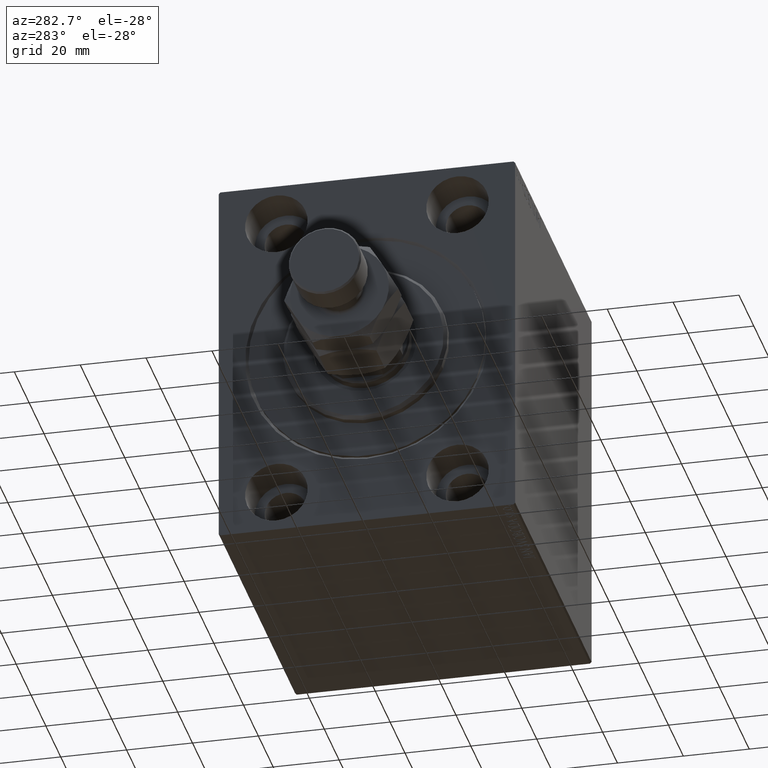
[diagram: clean part render]
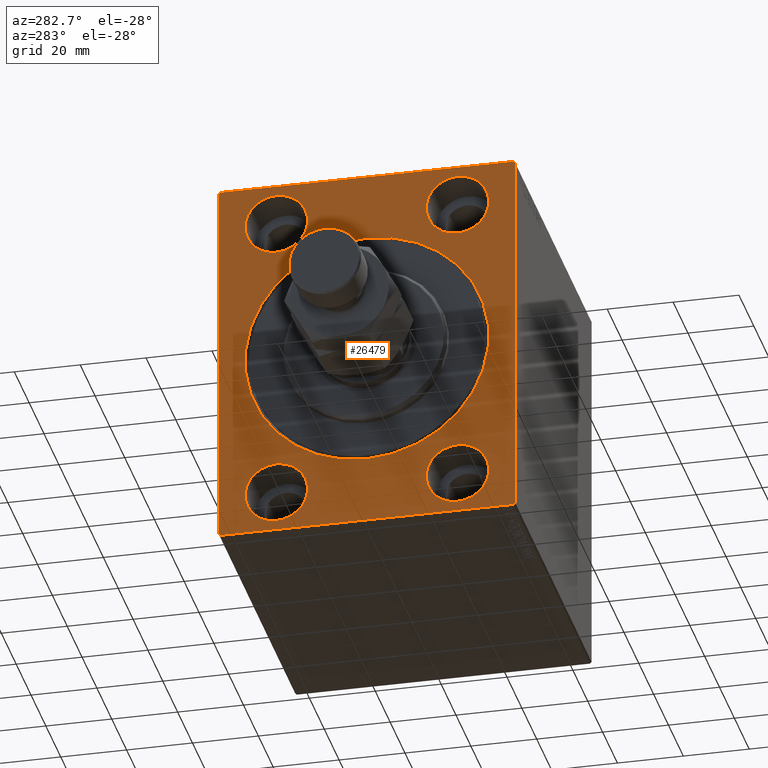
[diagram: same view with one face highlighted and labeled with its STEP entity id]
A machine part, auxiliary view. The second image highlights one B-rep face of the part: STEP entity #26479.
In plain terms, the highlighted planar face has unit normal (1, 0, 0).
Its self-contained STEP definition (entity closure, byte-faithful):
#25 = DIRECTION ( 'NONE',  ( 1.000000000000000000, 0.000000000000000000, 0.000000000000000000 ) ) ;
#550 = ORIENTED_EDGE ( 'NONE', *, *, #41232, .F. ) ;
#559 = CARTESIAN_POINT ( 'NONE',  ( 0.000000000000000000, 4.531193156845210737E-15, -37.00000000000003553 ) ) ;
#1374 = DIRECTION ( 'NONE',  ( 0.000000000000000000, -1.206764157201257045E-16, 1.000000000000000000 ) ) ;
#1579 = DIRECTION ( 'NONE',  ( 0.000000000000000000, 0.000000000000000000, 1.000000000000000000 ) ) ;
#1865 = EDGE_CURVE ( 'NONE', #31629, #1997, #42680, .T. ) ;
#1952 = CARTESIAN_POINT ( 'NONE',  ( 0.000000000000000000, 27.50000000000001066, 45.00000000000000711 ) ) ;
#1997 = VERTEX_POINT ( 'NONE', #33444 ) ;
#2538 = CARTESIAN_POINT ( 'NONE',  ( 0.000000000000000000, -45.00000000000000000, -57.50000000000000711 ) ) ;
#2671 = FACE_BOUND ( 'NONE', #16239, .T. ) ;
#2901 = DIRECTION ( 'NONE',  ( 0.000000000000000000, 0.000000000000000000, -1.000000000000000000 ) ) ;
#3034 = DIRECTION ( 'NONE',  ( 0.000000000000000000, 0.000000000000000000, -1.000000000000000000 ) ) ;
#3261 = EDGE_CURVE ( 'NONE', #17063, #35918, #37940, .T. ) ;
#3341 = FACE_BOUND ( 'NONE', #6124, .T. ) ;
#3607 = DIRECTION ( 'NONE',  ( -1.000000000000000000, 0.000000000000000000, 0.000000000000000000 ) ) ;
#4315 = ORIENTED_EDGE ( 'NONE', *, *, #22247, .F. ) ;
#4500 = CARTESIAN_POINT ( 'NONE',  ( 0.000000000000000000, 0.000000000000000000, 0.000000000000000000 ) ) ;
#4913 = DIRECTION ( 'NONE',  ( -1.000000000000000000, 0.000000000000000000, 0.000000000000000000 ) ) ;
#5251 = EDGE_CURVE ( 'NONE', #38792, #42651, #35022, .T. ) ;
#5394 = ORIENTED_EDGE ( 'NONE', *, *, #30779, .T. ) ;
#5462 = CARTESIAN_POINT ( 'NONE',  ( 0.000000000000000000, -44.50000000000005684, -57.50000000000000711 ) ) ;
#5642 = AXIS2_PLACEMENT_3D ( 'NONE', #41482, #15590, #39960 ) ;
#6124 = EDGE_LOOP ( 'NONE', ( #12371, #11765 ) ) ;
#6291 = ORIENTED_EDGE ( 'NONE', *, *, #29732, .F. ) ;
#6484 = CARTESIAN_POINT ( 'NONE',  ( 0.000000000000000000, 45.00000000000000000, 57.50000000000000711 ) ) ;
#6623 = DIRECTION ( 'NONE',  ( 0.000000000000000000, 0.000000000000000000, 1.000000000000000000 ) ) ;
#6798 = ORIENTED_EDGE ( 'NONE', *, *, #14361, .F. ) ;
#6845 = CARTESIAN_POINT ( 'NONE',  ( 0.000000000000000000, -27.50000000000000000, -44.99999999999998579 ) ) ;
#8141 = CARTESIAN_POINT ( 'NONE',  ( 0.000000000000000000, -27.49999999999998934, 54.50000000000000711 ) ) ;
#8229 = DIRECTION ( 'NONE',  ( 0.000000000000000000, 0.000000000000000000, 1.000000000000000000 ) ) ;
#8385 = CARTESIAN_POINT ( 'NONE',  ( 0.000000000000000000, 45.00000000000001421, -57.00000000000003553 ) ) ;
#8440 = EDGE_LOOP ( 'NONE', ( #17233, #44180 ) ) ;
#9244 = DIRECTION ( 'NONE',  ( 0.000000000000000000, 0.000000000000000000, 1.000000000000000000 ) ) ;
#9353 = CIRCLE ( 'NONE', #35037, 9.500000000000001776 ) ;
#9682 = LINE ( 'NONE', #2538, #15386 ) ;
#9809 = FACE_BOUND ( 'NONE', #8440, .T. ) ;
#10110 = DIRECTION ( 'NONE',  ( 0.000000000000000000, -0.7071067811865573427, -0.7071067811865376918 ) ) ;
#10708 = VECTOR ( 'NONE', #41101, 1000.000000000000000 ) ;
#11562 = AXIS2_PLACEMENT_3D ( 'NONE', #16191, #33886, #21446 ) ;
#11739 = ORIENTED_EDGE ( 'NONE', *, *, #31861, .T. ) ;
#11765 = ORIENTED_EDGE ( 'NONE', *, *, #19984, .F. ) ;
#11956 = CARTESIAN_POINT ( 'NONE',  ( 0.000000000000000000, 45.00000000000001421, -57.50000000000000711 ) ) ;
#12279 = CIRCLE ( 'NONE', #5642, 9.500000000000001776 ) ;
#12371 = ORIENTED_EDGE ( 'NONE', *, *, #28804, .F. ) ;
#13783 = CARTESIAN_POINT ( 'NONE',  ( 0.000000000000000000, 27.49999999999998934, -54.49999999999998579 ) ) ;
#13872 = AXIS2_PLACEMENT_3D ( 'NONE', #1952, #19406, #19629 ) ;
#13934 = FACE_BOUND ( 'NONE', #41072, .T. ) ;
#14008 = VERTEX_POINT ( 'NONE', #45247 ) ;
#14361 = EDGE_CURVE ( 'NONE', #38791, #1997, #41434, .T. ) ;
#15295 = CARTESIAN_POINT ( 'NONE',  ( 0.000000000000000000, -45.00000000000000000, 57.49999999999999289 ) ) ;
#15386 = VECTOR ( 'NONE', #24135, 1000.000000000000000 ) ;
#15590 = DIRECTION ( 'NONE',  ( -1.000000000000000000, 0.000000000000000000, 0.000000000000000000 ) ) ;
#16042 = LINE ( 'NONE', #5462, #10708 ) ;
#16145 = DIRECTION ( 'NONE',  ( -1.000000000000000000, 0.000000000000000000, 0.000000000000000000 ) ) ;
#16191 = CARTESIAN_POINT ( 'NONE',  ( 0.000000000000000000, 27.49999999999998934, -44.99999999999998579 ) ) ;
#16239 = EDGE_LOOP ( 'NONE', ( #23059, #11739 ) ) ;
#17047 = CARTESIAN_POINT ( 'NONE',  ( 0.000000000000000000, 0.000000000000000000, 0.000000000000000000 ) ) ;
#17063 = VERTEX_POINT ( 'NONE', #8385 ) ;
#17217 = CARTESIAN_POINT ( 'NONE',  ( 0.000000000000000000, 44.50000000000000000, 57.50000000000000711 ) ) ;
#17233 = ORIENTED_EDGE ( 'NONE', *, *, #42150, .F. ) ;
#17397 = CARTESIAN_POINT ( 'NONE',  ( 0.000000000000000000, 0.000000000000000000, 37.00000000000003553 ) ) ;
#18567 = CARTESIAN_POINT ( 'NONE',  ( 0.000000000000000000, 44.50000000000000000, 57.50000000000000711 ) ) ;
#18955 = VERTEX_POINT ( 'NONE', #35306 ) ;
#18961 = AXIS2_PLACEMENT_3D ( 'NONE', #4500, #40149, #42912 ) ;
#19028 = CARTESIAN_POINT ( 'NONE',  ( 0.000000000000000000, -27.50000000000000000, -44.99999999999998579 ) ) ;
#19031 = VECTOR ( 'NONE', #41884, 1000.000000000000000 ) ;
#19406 = DIRECTION ( 'NONE',  ( -1.000000000000000000, 0.000000000000000000, 0.000000000000000000 ) ) ;
#19552 = VECTOR ( 'NONE', #23327, 1000.000000000000000 ) ;
#19629 = DIRECTION ( 'NONE',  ( 0.000000000000000000, 0.000000000000000000, 1.000000000000000000 ) ) ;
#19763 = AXIS2_PLACEMENT_3D ( 'NONE', #17047, #25, #3034 ) ;
#19984 = EDGE_CURVE ( 'NONE', #32895, #32163, #25801, .T. ) ;
#20027 = EDGE_LOOP ( 'NONE', ( #28074, #38616 ) ) ;
#20086 = CARTESIAN_POINT ( 'NONE',  ( 0.000000000000000000, -45.00000000000000000, 56.99999999999996447 ) ) ;
#21191 = CIRCLE ( 'NONE', #19763, 37.00000000000003553 ) ;
#21446 = DIRECTION ( 'NONE',  ( 0.000000000000000000, 0.000000000000000000, 1.000000000000000000 ) ) ;
#21623 = VERTEX_POINT ( 'NONE', #559 ) ;
#21678 = CARTESIAN_POINT ( 'NONE',  ( 0.000000000000000000, 44.50000000000000000, -57.50000000000000711 ) ) ;
#21694 = LINE ( 'NONE', #15295, #24196 ) ;
#21775 = CARTESIAN_POINT ( 'NONE',  ( 0.000000000000000000, 45.00000000000000000, 56.99999999999997868 ) ) ;
#21908 = DIRECTION ( 'NONE',  ( 0.000000000000000000, 0.000000000000000000, 1.000000000000000000 ) ) ;
#22247 = EDGE_CURVE ( 'NONE', #17063, #29636, #32636, .T. ) ;
#22848 = EDGE_CURVE ( 'NONE', #40119, #31993, #16042, .T. ) ;
#23059 = ORIENTED_EDGE ( 'NONE', *, *, #34622, .T. ) ;
#23189 = AXIS2_PLACEMENT_3D ( 'NONE', #31395, #34402, #2901 ) ;
#23327 = DIRECTION ( 'NONE',  ( -0.000000000000000000, 0.7071067811865279218, 0.7071067811865672237 ) ) ;
#23479 = ORIENTED_EDGE ( 'NONE', *, *, #22848, .T. ) ;
#23662 = CARTESIAN_POINT ( 'NONE',  ( 0.000000000000000000, 27.50000000000001066, 35.50000000000000711 ) ) ;
#23864 = CARTESIAN_POINT ( 'NONE',  ( 0.000000000000000000, -27.49999999999998934, 35.50000000000000711 ) ) ;
#24135 = DIRECTION ( 'NONE',  ( 0.000000000000000000, 1.000000000000000000, 0.000000000000000000 ) ) ;
#24196 = VECTOR ( 'NONE', #31834, 1000.000000000000000 ) ;
#25597 = EDGE_CURVE ( 'NONE', #42651, #38792, #37128, .T. ) ;
#25801 = CIRCLE ( 'NONE', #28697, 9.500000000000001776 ) ;
#26260 = CARTESIAN_POINT ( 'NONE',  ( 0.000000000000000000, 27.49999999999998934, -44.99999999999998579 ) ) ;
#26479 = ADVANCED_FACE ( 'NONE', ( #2671, #41320, #3341, #9809, #13934, #33957 ), #37858, .F. ) ;
#27202 = EDGE_LOOP ( 'NONE', ( #550, #28086, #6798, #5394, #4315, #40219, #32219, #23479 ) ) ;
#27561 = CARTESIAN_POINT ( 'NONE',  ( 0.000000000000000000, 45.00000000000001421, -57.00000000000003553 ) ) ;
#28074 = ORIENTED_EDGE ( 'NONE', *, *, #25597, .F. ) ;
#28086 = ORIENTED_EDGE ( 'NONE', *, *, #1865, .T. ) ;
#28697 = AXIS2_PLACEMENT_3D ( 'NONE', #39879, #4913, #21908 ) ;
#28804 = EDGE_CURVE ( 'NONE', #32163, #32895, #12279, .T. ) ;
#29133 = CARTESIAN_POINT ( 'NONE',  ( 0.000000000000000000, 27.50000000000001066, 45.00000000000000711 ) ) ;
#29354 = VERTEX_POINT ( 'NONE', #37260 ) ;
#29581 = CARTESIAN_POINT ( 'NONE',  ( 0.000000000000000000, -44.50000000000005684, -57.50000000000000711 ) ) ;
#29607 = DIRECTION ( 'NONE',  ( -0.000000000000000000, 0.7071067811865474617, -0.7071067811865474617 ) ) ;
#29636 = VERTEX_POINT ( 'NONE', #21775 ) ;
#29732 = EDGE_CURVE ( 'NONE', #14008, #29354, #9353, .T. ) ;
#30425 = ORIENTED_EDGE ( 'NONE', *, *, #39987, .F. ) ;
#30610 = VERTEX_POINT ( 'NONE', #23662 ) ;
#30779 = EDGE_CURVE ( 'NONE', #38791, #29636, #43432, .T. ) ;
#31395 = CARTESIAN_POINT ( 'NONE',  ( 0.000000000000000000, 0.000000000000000000, 0.000000000000000000 ) ) ;
#31578 = CIRCLE ( 'NONE', #41872, 9.500000000000001776 ) ;
#31629 = VERTEX_POINT ( 'NONE', #42218 ) ;
#31834 = DIRECTION ( 'NONE',  ( 0.000000000000000000, 0.000000000000000000, -1.000000000000000000 ) ) ;
#31861 = EDGE_CURVE ( 'NONE', #21623, #39958, #34383, .T. ) ;
#31993 = VERTEX_POINT ( 'NONE', #38723 ) ;
#32163 = VERTEX_POINT ( 'NONE', #8141 ) ;
#32219 = ORIENTED_EDGE ( 'NONE', *, *, #39464, .F. ) ;
#32636 = LINE ( 'NONE', #11956, #43802 ) ;
#32895 = VERTEX_POINT ( 'NONE', #23864 ) ;
#33007 = AXIS2_PLACEMENT_3D ( 'NONE', #6845, #3607, #6623 ) ;
#33064 = DIRECTION ( 'NONE',  ( -1.000000000000000000, 0.000000000000000000, 0.000000000000000000 ) ) ;
#33444 = CARTESIAN_POINT ( 'NONE',  ( 0.000000000000000000, -44.49999999999997158, 57.49999999999999289 ) ) ;
#33474 = EDGE_CURVE ( 'NONE', #30610, #18955, #35131, .T. ) ;
#33603 = VECTOR ( 'NONE', #29607, 1000.000000000000114 ) ;
#33886 = DIRECTION ( 'NONE',  ( -1.000000000000000000, 0.000000000000000000, 0.000000000000000000 ) ) ;
#33957 = FACE_OUTER_BOUND ( 'NONE', #27202, .T. ) ;
#34383 = CIRCLE ( 'NONE', #18961, 37.00000000000003553 ) ;
#34402 = DIRECTION ( 'NONE',  ( 1.000000000000000000, 0.000000000000000000, 0.000000000000000000 ) ) ;
#34622 = EDGE_CURVE ( 'NONE', #39958, #21623, #21191, .T. ) ;
#35022 = CIRCLE ( 'NONE', #11562, 9.500000000000001776 ) ;
#35037 = AXIS2_PLACEMENT_3D ( 'NONE', #19028, #33064, #1579 ) ;
#35131 = CIRCLE ( 'NONE', #13872, 9.500000000000001776 ) ;
#35306 = CARTESIAN_POINT ( 'NONE',  ( 0.000000000000000000, 27.50000000000001066, 54.50000000000000711 ) ) ;
#35918 = VERTEX_POINT ( 'NONE', #21678 ) ;
#37128 = CIRCLE ( 'NONE', #37840, 9.500000000000001776 ) ;
#37260 = CARTESIAN_POINT ( 'NONE',  ( 0.000000000000000000, -27.50000000000000000, -35.49999999999998579 ) ) ;
#37840 = AXIS2_PLACEMENT_3D ( 'NONE', #26260, #16145, #9244 ) ;
#37858 = PLANE ( 'NONE',  #23189 ) ;
#37940 = LINE ( 'NONE', #27561, #38669 ) ;
#38616 = ORIENTED_EDGE ( 'NONE', *, *, #5251, .F. ) ;
#38669 = VECTOR ( 'NONE', #10110, 1000.000000000000114 ) ;
#38723 = CARTESIAN_POINT ( 'NONE',  ( 0.000000000000000000, -45.00000000000000000, -57.00000000000003553 ) ) ;
#38791 = VERTEX_POINT ( 'NONE', #17217 ) ;
#38792 = VERTEX_POINT ( 'NONE', #13783 ) ;
#38877 = CARTESIAN_POINT ( 'NONE',  ( 0.000000000000000000, 27.49999999999998934, -35.49999999999998579 ) ) ;
#39464 = EDGE_CURVE ( 'NONE', #40119, #35918, #9682, .T. ) ;
#39730 = DIRECTION ( 'NONE',  ( -1.000000000000000000, 0.000000000000000000, 0.000000000000000000 ) ) ;
#39879 = CARTESIAN_POINT ( 'NONE',  ( 0.000000000000000000, -27.49999999999998934, 45.00000000000000711 ) ) ;
#39958 = VERTEX_POINT ( 'NONE', #17397 ) ;
#39960 = DIRECTION ( 'NONE',  ( 0.000000000000000000, 0.000000000000000000, 1.000000000000000000 ) ) ;
#39987 = EDGE_CURVE ( 'NONE', #29354, #14008, #41092, .T. ) ;
#40119 = VERTEX_POINT ( 'NONE', #29581 ) ;
#40149 = DIRECTION ( 'NONE',  ( 1.000000000000000000, 0.000000000000000000, 0.000000000000000000 ) ) ;
#40219 = ORIENTED_EDGE ( 'NONE', *, *, #3261, .T. ) ;
#41072 = EDGE_LOOP ( 'NONE', ( #30425, #6291 ) ) ;
#41092 = CIRCLE ( 'NONE', #33007, 9.500000000000001776 ) ;
#41101 = DIRECTION ( 'NONE',  ( -0.000000000000000000, -0.7071067811865279218, 0.7071067811865671127 ) ) ;
#41232 = EDGE_CURVE ( 'NONE', #31629, #31993, #21694, .T. ) ;
#41320 = FACE_BOUND ( 'NONE', #20027, .T. ) ;
#41434 = LINE ( 'NONE', #6484, #19031 ) ;
#41482 = CARTESIAN_POINT ( 'NONE',  ( 0.000000000000000000, -27.49999999999998934, 45.00000000000000711 ) ) ;
#41872 = AXIS2_PLACEMENT_3D ( 'NONE', #29133, #39730, #8229 ) ;
#41884 = DIRECTION ( 'NONE',  ( 0.000000000000000000, -1.000000000000000000, -1.541976423090495387E-16 ) ) ;
#42150 = EDGE_CURVE ( 'NONE', #18955, #30610, #31578, .T. ) ;
#42218 = CARTESIAN_POINT ( 'NONE',  ( 0.000000000000000000, -45.00000000000000000, 56.99999999999996447 ) ) ;
#42651 = VERTEX_POINT ( 'NONE', #38877 ) ;
#42680 = LINE ( 'NONE', #20086, #19552 ) ;
#42912 = DIRECTION ( 'NONE',  ( 0.000000000000000000, 0.000000000000000000, -1.000000000000000000 ) ) ;
#43432 = LINE ( 'NONE', #18567, #33603 ) ;
#43802 = VECTOR ( 'NONE', #1374, 1000.000000000000000 ) ;
#44180 = ORIENTED_EDGE ( 'NONE', *, *, #33474, .F. ) ;
#45247 = CARTESIAN_POINT ( 'NONE',  ( 0.000000000000000000, -27.50000000000000000, -54.49999999999998579 ) ) ;